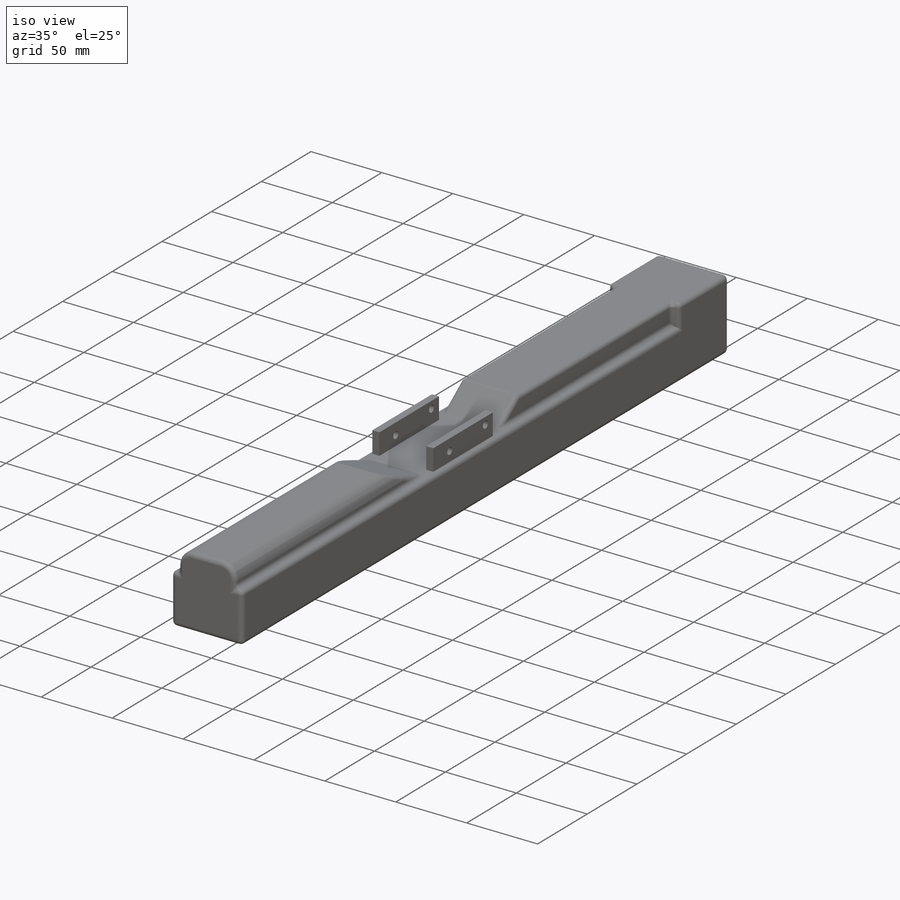
[diagram: iso view]
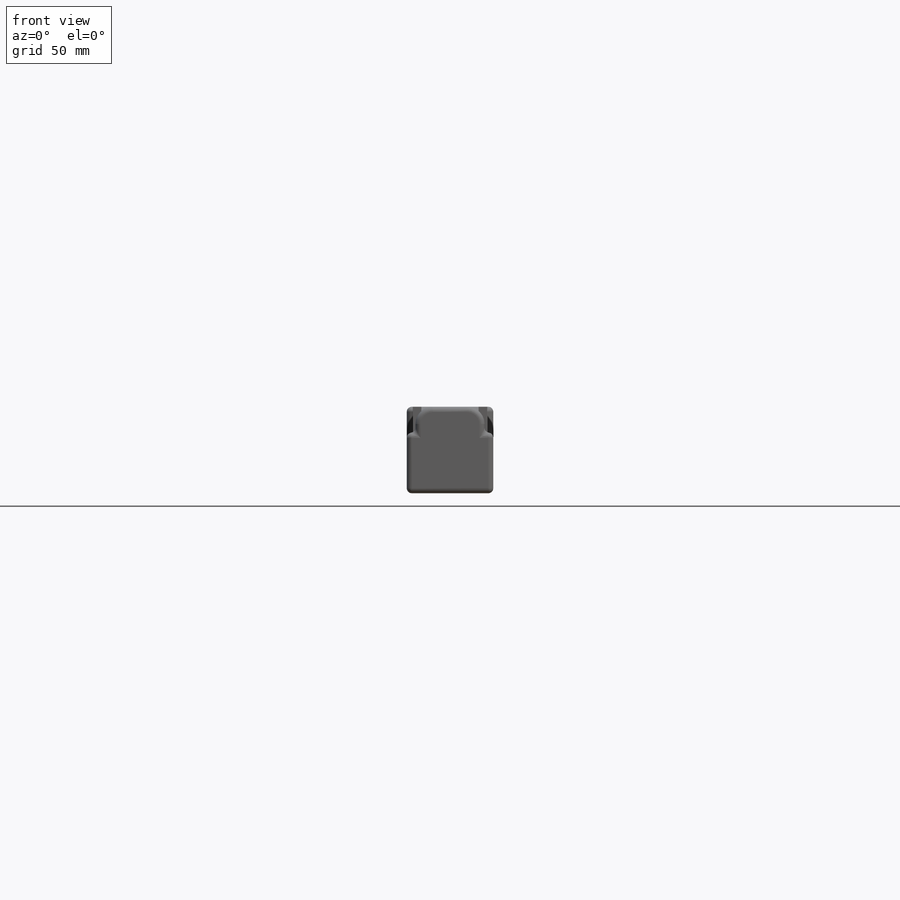
[diagram: front view]
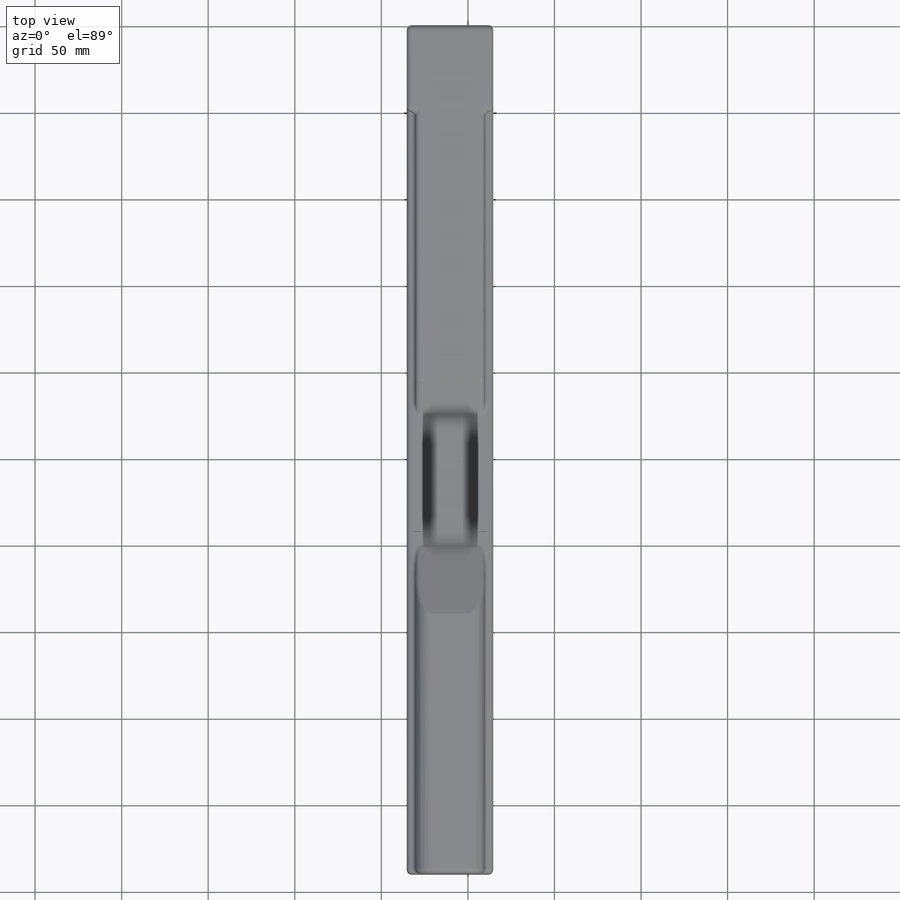
[diagram: top view]
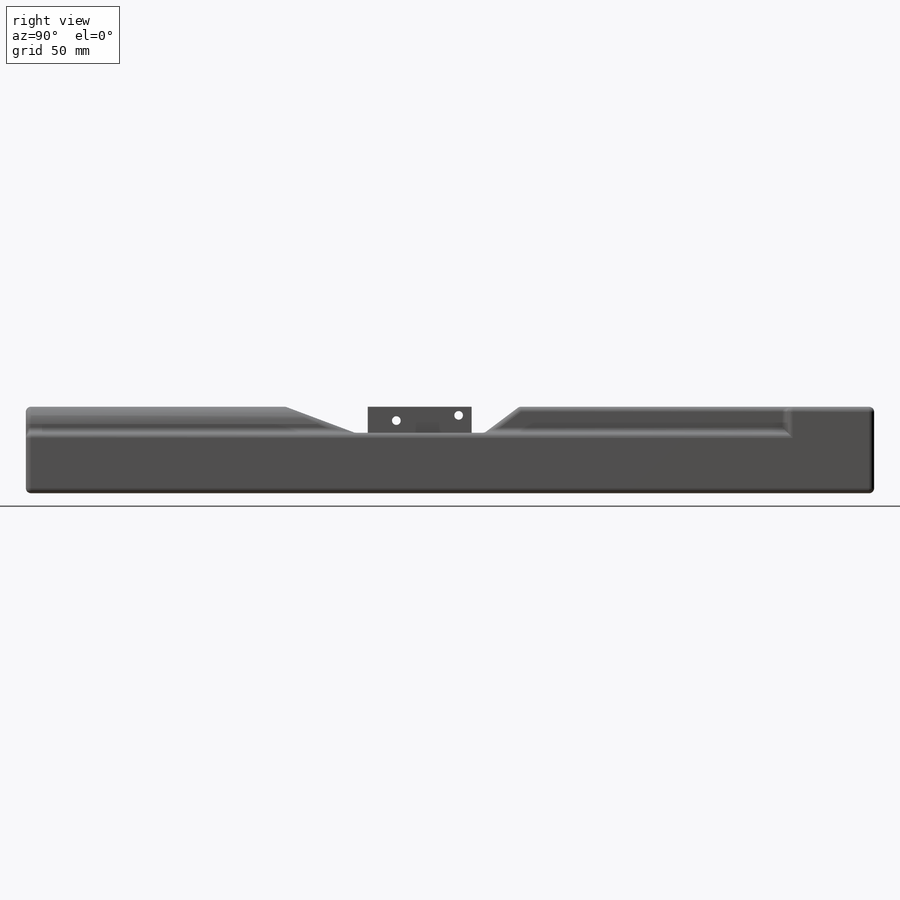
[diagram: right view]
SOLIDWORKS PART (.sldprt)
format: sldprt  version: not decoded by parser v0  size: 505,856 bytes
history: native  units: mm
features: sketch x10, cut_extrude x8, fillet x4, extrude x2, material x1 (+14 scaffold rows collapsed)
feature tree (39):
  scaffold x14  (default folders/planes/origin — collapsed)
  material  "Material <not specified>"
  sketch  "Sketch1"  dims[D1=50.0mm D2=50.0mm]
  extrude  "Extrude1"  Depth=490mm
  sketch  "Sketch2"  dims[c1.D1=175.0mm c1.D2=180.0mm c1.D3=15.0mm c1.D4=20.0mm c1.D5=40.0mm c2.D1=150.0mm]
  cut_extrude  "Extrude2"  [1 undecoded]
  sketch  "Sketch3"  dims[D1=5.0mm D2=3.5mm D3=3.5mm D4=5.0mm D5=60.0mm D6=7.5mm D7=60.0mm D8=7.5mm]
  extrude  "Extrude3"  Depth=15mm
  sketch  "Sketch4"  dims[D1=5.0mm D6=5.0mm D2=214.0mm D3=250.0mm D4=7.0mm D5=10.0mm]
  cut_extrude  "Extrude4"  [1 undecoded]
  sketch  "Sketch5"  dims[c1.D1=15.0mm c1.D2=15.0mm c1.D3=20.0mm c1.D4=20.0mm c1.D5=50.0mm c2.D5=90.0deg c3.D5=5.0mm c3.D6=5.0mm]
  cut_extrude  "Extrude5"  Depth=190mm
  sketch  "Sketch6"  dims[D1=50.0mm]
  cut_extrude  "Extrude6"  Depth=5mm
  sketch  "Sketch7"  dims[D1=50.0mm]
  cut_extrude  "Extrude7"  Depth=5mm
  fillet  "Fillet1"  Radius=10mm
  fillet  "Fillet2"  Radius=3mm
  fillet  "Fillet3"  Radius=3mm
  fillet  "Fillet4"  Radius=3mm
  sketch  "Sketch9"  dims[D1=15.0mm D2=8.0mm D3=8.0mm D4=65.0mm]
  cut_extrude  "Extrude9"  Depth=30mm
  sketch  "Sketch11"  dims[D1=5.0mm D2=15.0mm D3=25.0mm]
  cut_extrude  "Extrude11"  Depth=5mm
  sketch  "Sketch12"  dims[D1=5.0mm D2=25.0mm D3=15.0mm]
  cut_extrude  "Extrude12"  Depth=5mm
decode coverage: 22 of 24 modeling features carry decoded parameters
note: 2 parameter values undecoded
note: suppression state not decoded; provenance and decode notes live in map.json
